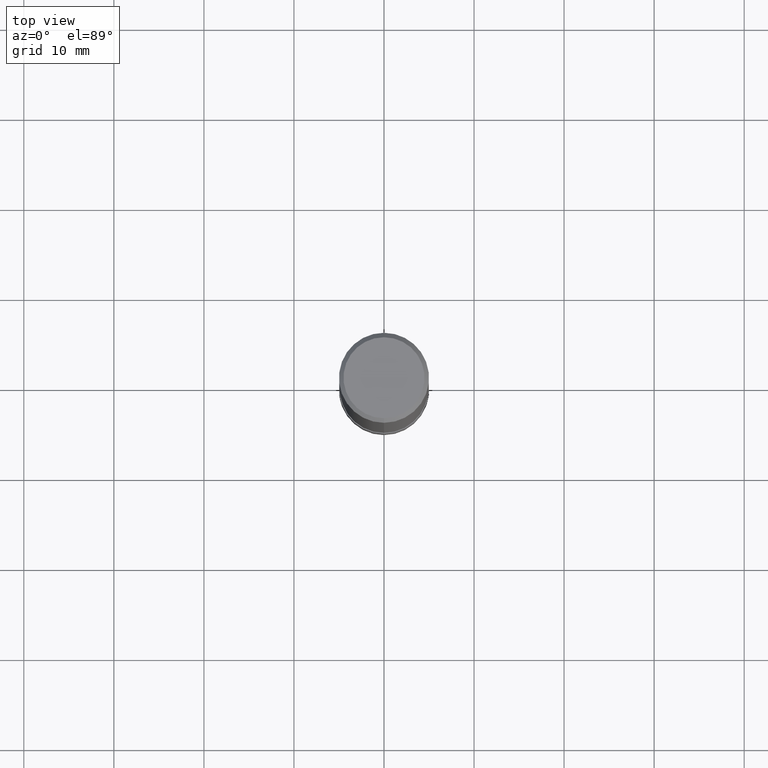
[diagram: clean part render]
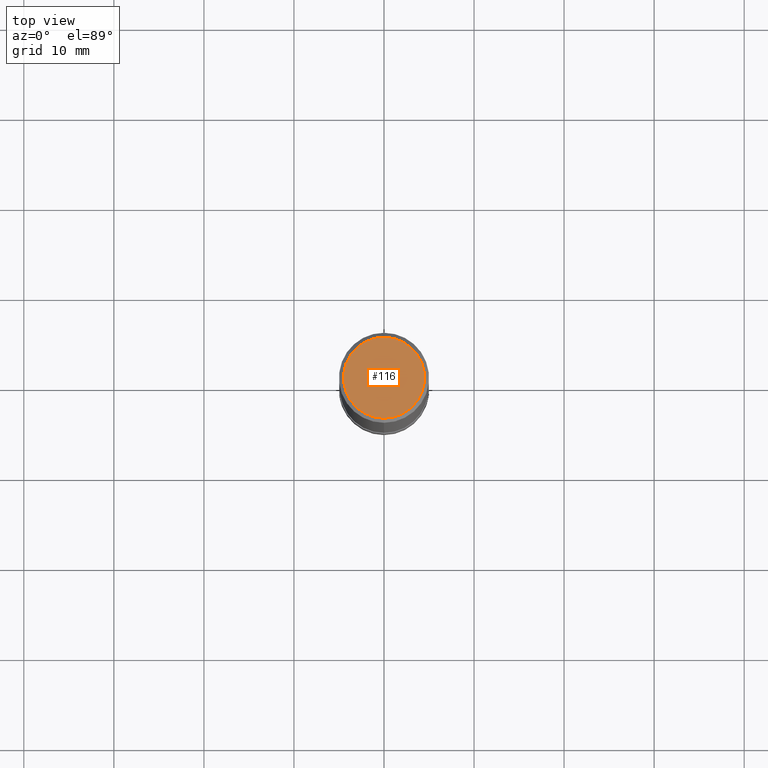
[diagram: same view with one face highlighted and labeled with its STEP entity id]
A machine part, top view. The second image highlights one B-rep face of the part: STEP entity #116.
In plain terms, the highlighted planar face has unit normal (-0, 0, 1).
Its self-contained STEP definition (entity closure, byte-faithful):
#104=VERTEX_POINT('',#241);
#116=ADVANCED_FACE('',(#255),#256,.T.);
#132=EDGE_CURVE('',#138,#104,#272,.T.);
#138=VERTEX_POINT('',#278);
#154=EDGE_CURVE('',#104,#138,#299,.T.);
#241=CARTESIAN_POINT('',(0.0,4.5,0.0));
#255=FACE_OUTER_BOUND('',#408,.T.);
#256=PLANE('',#409);
#272=CIRCLE('',#431,4.5);
#278=CARTESIAN_POINT('',(5.5107285922007E-016,-4.5,0.0));
#299=CIRCLE('',#464,4.5);
#408=EDGE_LOOP('',(#574,#575));
#409=AXIS2_PLACEMENT_3D('',#576,#577,#578);
#431=AXIS2_PLACEMENT_3D('',#594,#595,#596);
#464=AXIS2_PLACEMENT_3D('',#640,#641,#642);
#574=ORIENTED_EDGE('',*,*,#154,.F.);
#575=ORIENTED_EDGE('',*,*,#132,.F.);
#576=CARTESIAN_POINT('',(0.0,2.25,0.0));
#577=DIRECTION('',(-0.0,0.0,1.0));
#578=DIRECTION('',(0.0,-1.0,0.0));
#594=CARTESIAN_POINT('',(0.0,0.0,0.0));
#595=DIRECTION('',(0.0,0.0,-1.0));
#596=DIRECTION('',(0.0,1.0,0.0));
#640=CARTESIAN_POINT('',(0.0,0.0,0.0));
#641=DIRECTION('',(0.0,0.0,-1.0));
#642=DIRECTION('',(0.0,1.0,0.0));